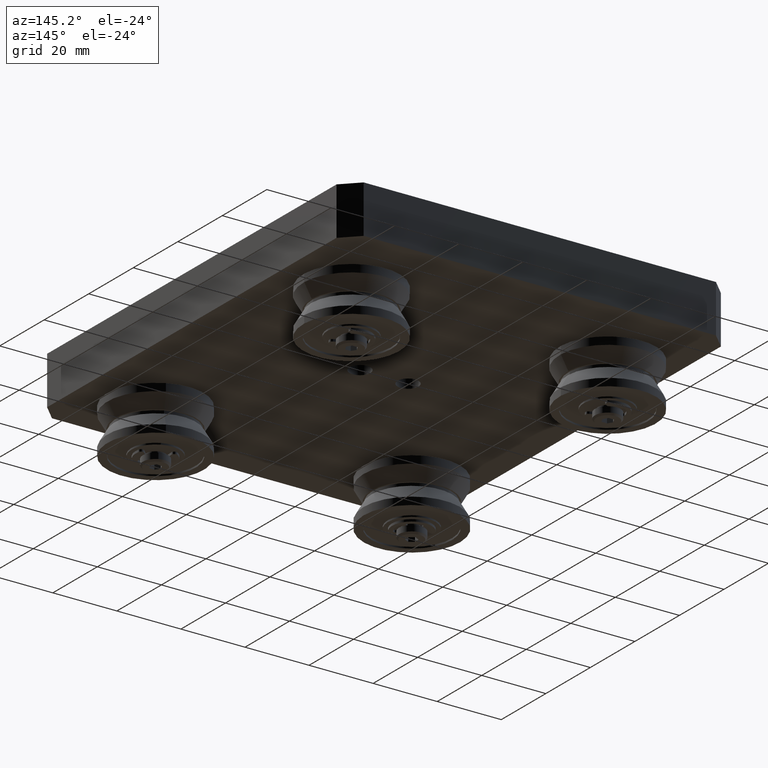
[diagram: clean part render]
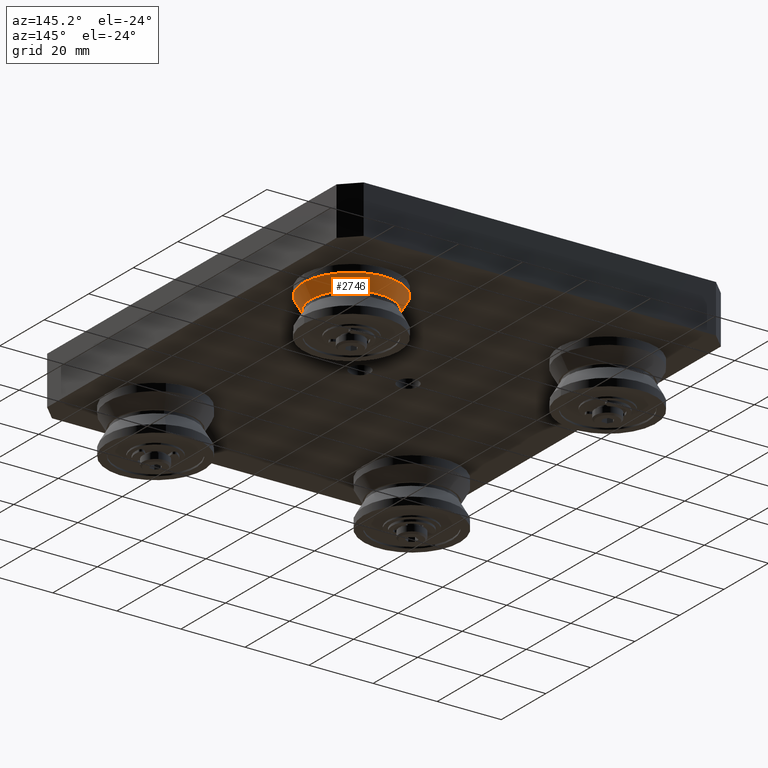
[diagram: same view with one face highlighted and labeled with its STEP entity id]
A machine part, auxiliary view. The second image highlights one B-rep face of the part: STEP entity #2746.
In plain terms, the highlighted conical surface has half-angle 30 deg.
Its self-contained STEP definition (entity closure, byte-faithful):
#96=CONICAL_SURFACE('',#3214,13.822019978079,0.523598775598297);
#318=CIRCLE('',#3213,12.644039956158);
#319=CIRCLE('',#3215,15.);
#489=FACE_OUTER_BOUND('',#695,.T.);
#695=EDGE_LOOP('',(#2300,#2301,#2302,#2303));
#910=LINE('',#4777,#1125);
#1125=VECTOR('',#3948,13.822019978079);
#1341=VERTEX_POINT('',#4772);
#1342=VERTEX_POINT('',#4775);
#1671=EDGE_CURVE('',#1341,#1341,#318,.T.);
#1672=EDGE_CURVE('',#1342,#1342,#319,.T.);
#1673=EDGE_CURVE('',#1342,#1341,#910,.T.);
#2300=ORIENTED_EDGE('',*,*,#1672,.F.);
#2301=ORIENTED_EDGE('',*,*,#1673,.T.);
#2302=ORIENTED_EDGE('',*,*,#1671,.T.);
#2303=ORIENTED_EDGE('',*,*,#1673,.F.);
#2746=ADVANCED_FACE('',(#489),#96,.T.);
#3213=AXIS2_PLACEMENT_3D('',#4773,#3942,#3943);
#3214=AXIS2_PLACEMENT_3D('',#4774,#3944,#3945);
#3215=AXIS2_PLACEMENT_3D('',#4776,#3946,#3947);
#3942=DIRECTION('center_axis',(1.,0.,0.));
#3943=DIRECTION('ref_axis',(0.,1.,0.));
#3944=DIRECTION('center_axis',(1.,0.,0.));
#3945=DIRECTION('ref_axis',(0.,1.,0.));
#3946=DIRECTION('center_axis',(1.,0.,0.));
#3947=DIRECTION('ref_axis',(0.,1.,0.));
#3948=DIRECTION('',(-0.86602540378444,0.499999999999998,6.12323399573675E-17));
#4772=CARTESIAN_POINT('',(0.55,-12.644039956158,-1.54844830606002E-15));
#4773=CARTESIAN_POINT('Origin',(0.55,0.,0.));
#4774=CARTESIAN_POINT('Origin',(2.59032124826824,0.,0.));
#4775=CARTESIAN_POINT('',(4.63064249653649,-15.,-1.83697019872103E-15));
#4776=CARTESIAN_POINT('Origin',(4.63064249653649,0.,0.));
#4777=CARTESIAN_POINT('',(2.59032124826824,-13.822019978079,-1.69270925239052E-15));